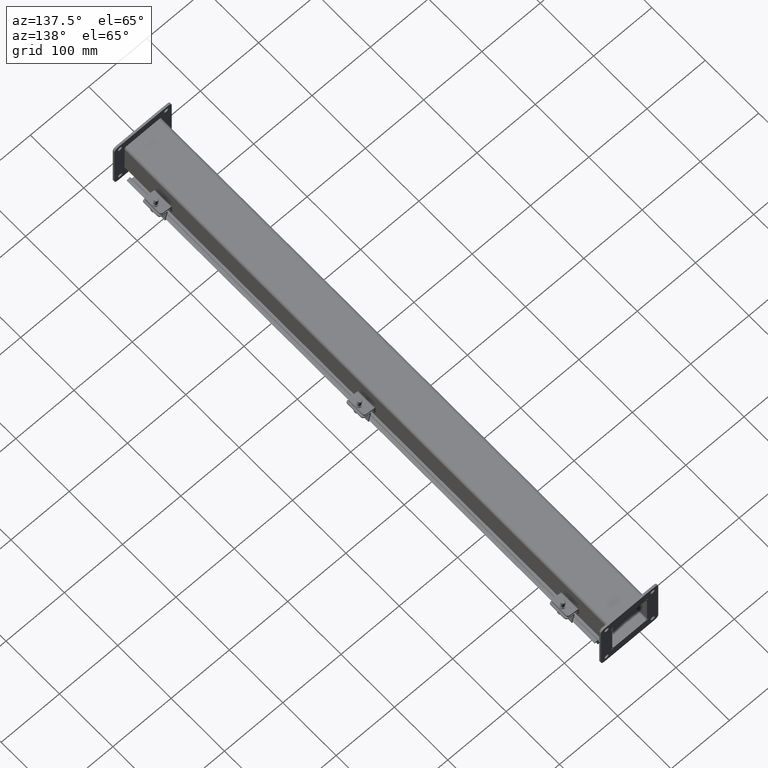
[diagram: clean part render]
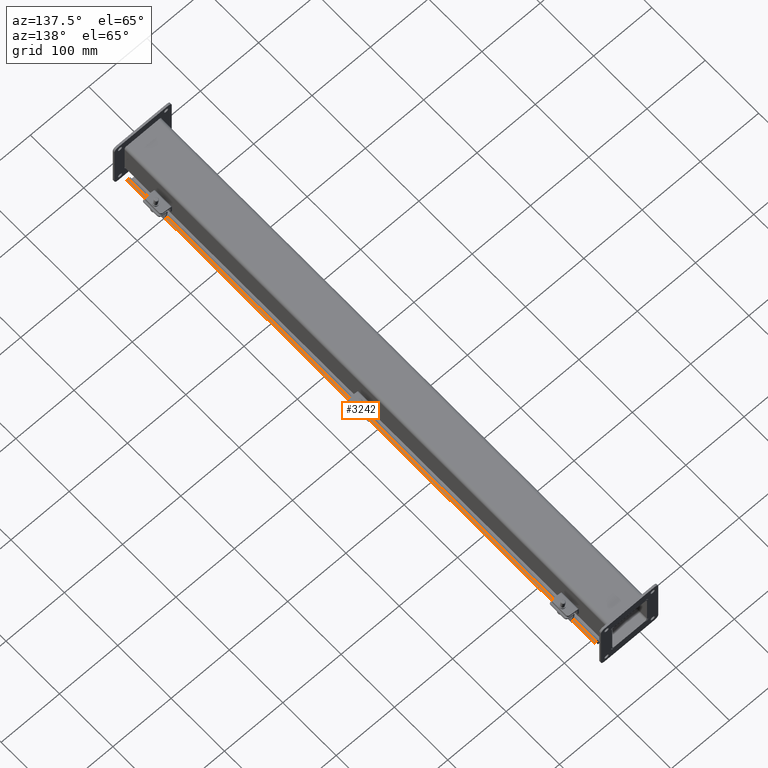
[diagram: same view with one face highlighted and labeled with its STEP entity id]
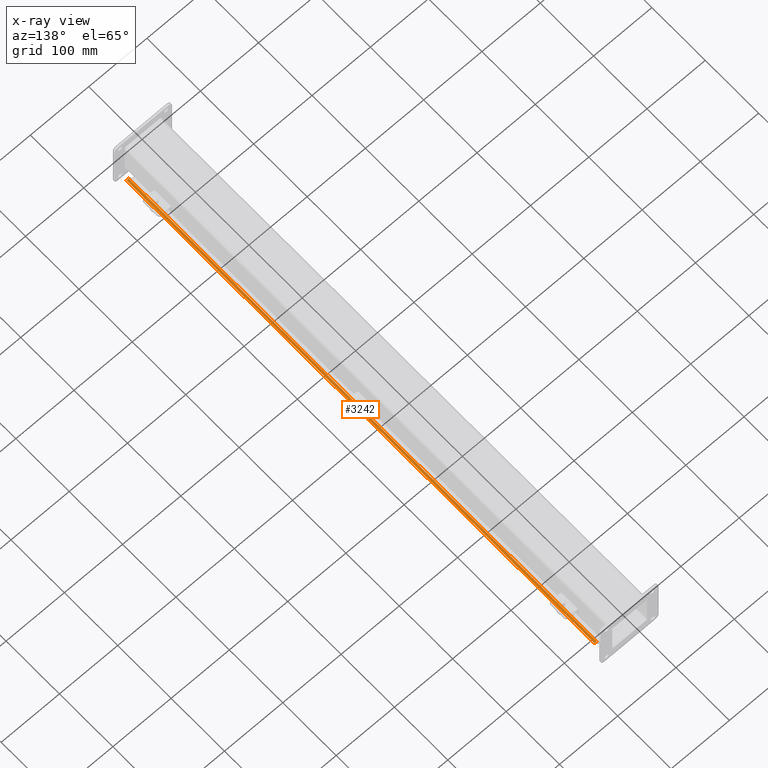
[diagram: x-ray of the same camera — body ghosted, the highlighted face saturated]
A machine part, auxiliary view. The second image highlights one B-rep face of the part: STEP entity #3242.
The next image is the same camera in x-ray: the body ghosted, the highlighted face saturated — about 0% of this face is hidden behind the body in this view.
In plain terms, the highlighted planar face has unit normal (-0.342, 0, -0.9397).
Its self-contained STEP definition (entity closure, byte-faithful):
#223=PLANE($,#3501);
#378=FACE_OUTER_BOUND($,#570,.T.);
#570=EDGE_LOOP($,(#2447,#2448,#2449,#2450));
#927=LINE($,#4998,#1237);
#932=LINE($,#5011,#1242);
#939=LINE($,#5029,#1249);
#941=LINE($,#5032,#1251);
#1237=VECTOR($,#4028,34.5);
#1242=VECTOR($,#4039,0.144687422290393);
#1249=VECTOR($,#4058,0.144687422290392);
#1251=VECTOR($,#4062,34.5);
#1535=VERTEX_POINT($,#4996);
#1536=VERTEX_POINT($,#4997);
#1541=VERTEX_POINT($,#5009);
#1546=VERTEX_POINT($,#5028);
#1861=EDGE_CURVE($,#1535,#1536,#927,.T.);
#1868=EDGE_CURVE($,#1541,#1536,#932,.T.);
#1877=EDGE_CURVE($,#1535,#1546,#939,.T.);
#1879=EDGE_CURVE($,#1546,#1541,#941,.T.);
#2447=ORIENTED_EDGE($,*,*,#1861,.T.);
#2448=ORIENTED_EDGE($,*,*,#1868,.F.);
#2449=ORIENTED_EDGE($,*,*,#1879,.F.);
#2450=ORIENTED_EDGE($,*,*,#1877,.F.);
#3242=ADVANCED_FACE($,(#378),#223,.F.);
#3501=AXIS2_PLACEMENT_3D($,#5033,#4063,#4064);
#4028=DIRECTION($,(1.87818963432263E-016,-1.,1.97367449559423E-016));
#4039=DIRECTION($,(-0.939692620785909,-1.08988450594821E-016,0.342020143325667));
#4058=DIRECTION($,(0.939692620785909,9.6233272209522E-017,-0.342020143325667));
#4062=DIRECTION($,(2.80218975594629E-016,-1.,1.84525053330276E-016));
#4063=DIRECTION('center_axis',(-0.342020143325666,-2.49702604726706E-016,
-0.939692620785909));
#4064=DIRECTION('ref_axis',(-0.939692620785909,7.3451484982062E-017,0.342020143325666));
#4996=CARTESIAN_POINT('',(1.50474762008502,17.25,0.51109007062811));
#4997=CARTESIAN_POINT('',(1.50474762008503,-17.25,0.511090070628117));
#4998=CARTESIAN_POINT($,(1.50474762008503,-6.65720630102873E-016,0.511090070628114));
#5009=CARTESIAN_POINT('',(1.64070932313185,-17.25,0.461604057718935));
#5011=CARTESIAN_POINT($,(1.31637211327552,-17.25,0.579653147971588));
#5028=CARTESIAN_POINT('',(1.64070932313184,17.25,0.46160405771893));
#5029=CARTESIAN_POINT($,(1.50474762008502,17.25,0.51109007062811));
#5032=CARTESIAN_POINT($,(1.64070932313184,17.25,0.461604057718929));
#5033=CARTESIAN_POINT('Origin',(1.5151692889722,-1.36713810388013E-015,
0.507296893361806));